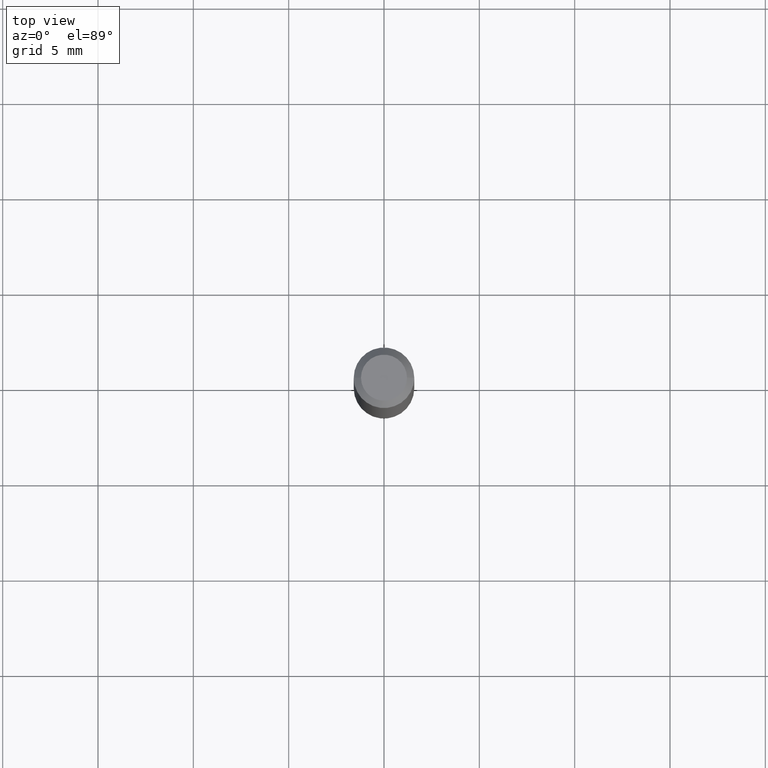
[diagram: clean part render]
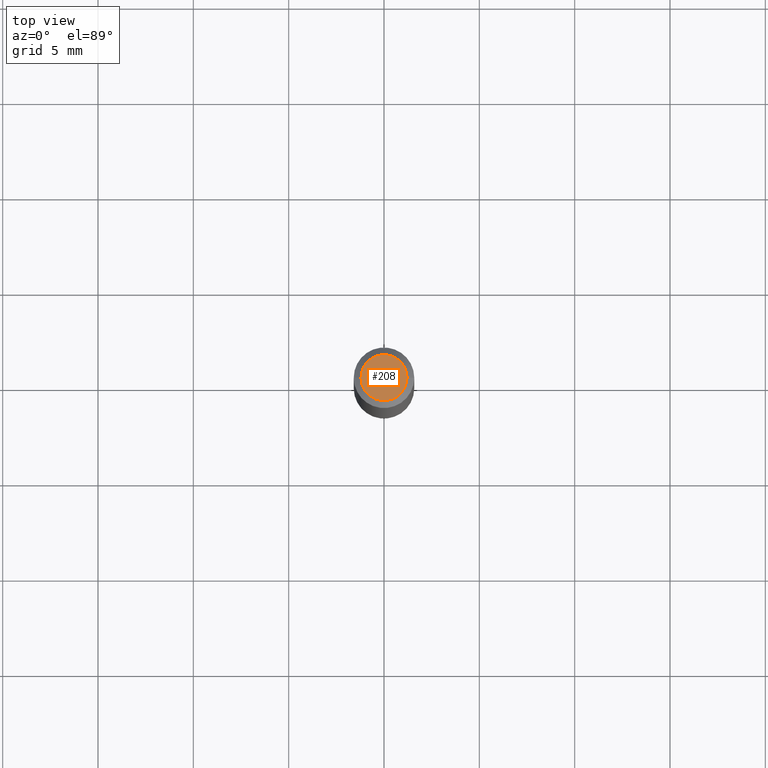
[diagram: same view with one face highlighted and labeled with its STEP entity id]
A machine part, top view. The second image highlights one B-rep face of the part: STEP entity #208.
In plain terms, the highlighted planar face has unit normal (0, -0, -1).
Its self-contained STEP definition (entity closure, byte-faithful):
#9 = DIRECTION ( 'NONE',  ( 1.000000000000000000, -6.982962677686267499E-15, 5.108144071313017768E-29 ) ) ;
#28 = DIRECTION ( 'NONE',  ( -2.445468806185136597E-29, 3.491481338843145583E-15, 1.000000000000000000 ) ) ;
#39 = DIRECTION ( 'NONE',  ( -2.445468806185136597E-29, 3.491481338843145583E-15, 1.000000000000000000 ) ) ;
#67 = CIRCLE ( 'NONE', #93, 0.04749999999999999362 ) ;
#78 = PLANE ( 'NONE',  #312 ) ;
#93 = AXIS2_PLACEMENT_3D ( 'NONE', #181, #39, #9 ) ;
#98 = CARTESIAN_POINT ( 'NONE',  ( -8.783475466943041190E-44, 1.254047510459085029E-29, 3.591734821858152800E-15 ) ) ;
#105 = EDGE_CURVE ( 'NONE', #436, #322, #362, .T. ) ;
#145 = DIRECTION ( 'NONE',  ( 2.438088387897960049E-29, -3.491481338843145188E-15, -1.000000000000000000 ) ) ;
#150 = CARTESIAN_POINT ( 'NONE',  ( -0.04749999999999999362, 3.578768372314273615E-16, 3.591734821858150433E-15 ) ) ;
#158 = CARTESIAN_POINT ( 'NONE',  ( 0.04749999999999999362, -4.035134999187516007E-16, 3.591734821858155166E-15 ) ) ;
#162 = DIRECTION ( 'NONE',  ( 1.000000000000000000, -6.982962677686267499E-15, 5.108144071313017768E-29 ) ) ;
#181 = CARTESIAN_POINT ( 'NONE',  ( -8.783475466943041190E-44, 1.254047510459085029E-29, 3.591734821858152800E-15 ) ) ;
#200 = ORIENTED_EDGE ( 'NONE', *, *, #105, .T. ) ;
#208 = ADVANCED_FACE ( 'NONE', ( #400 ), #78, .F. ) ;
#221 = DIRECTION ( 'NONE',  ( -1.000000000000000000, 6.982962677686265922E-15, -4.876176775795935793E-29 ) ) ;
#296 = CARTESIAN_POINT ( 'NONE',  ( 3.316907271900976096E-16, 0.04749999999999999362, 1.630022047334026855E-15 ) ) ;
#312 = AXIS2_PLACEMENT_3D ( 'NONE', #296, #145, #221 ) ;
#318 = ORIENTED_EDGE ( 'NONE', *, *, #323, .T. ) ;
#322 = VERTEX_POINT ( 'NONE', #150 ) ;
#323 = EDGE_CURVE ( 'NONE', #322, #436, #67, .T. ) ;
#362 = CIRCLE ( 'NONE', #421, 0.04749999999999999362 ) ;
#400 = FACE_OUTER_BOUND ( 'NONE', #431, .T. ) ;
#421 = AXIS2_PLACEMENT_3D ( 'NONE', #98, #28, #162 ) ;
#431 = EDGE_LOOP ( 'NONE', ( #318, #200 ) ) ;
#436 = VERTEX_POINT ( 'NONE', #158 ) ;